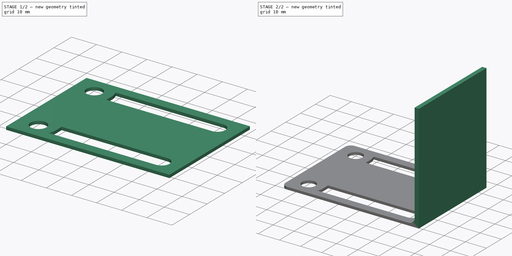
[diagram: build sequence overview — one tinted view per stage of 2, left to right]
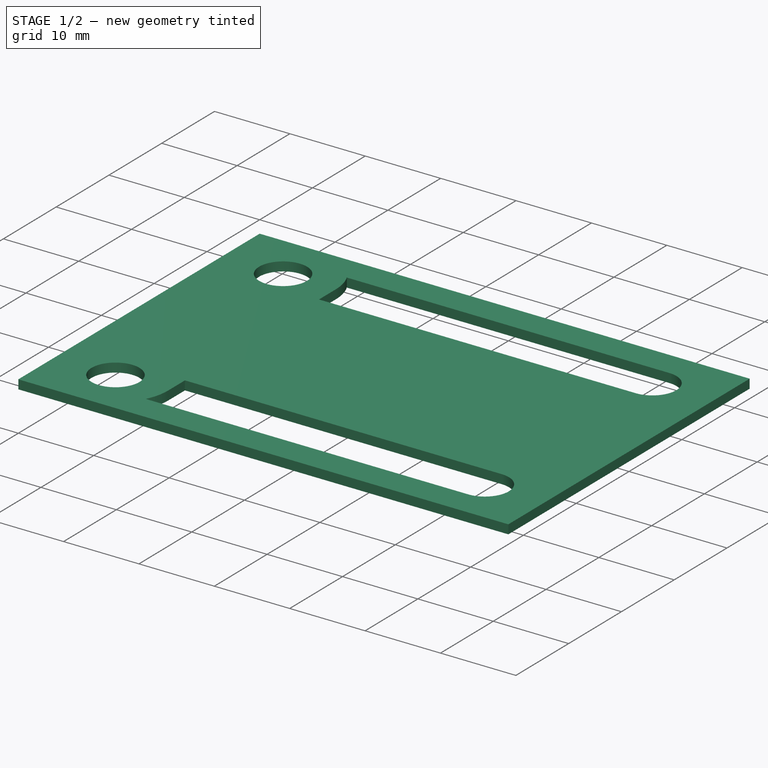
[diagram: stage 1 of 2 — iso view after this stage's code; geometry added in this stage tinted green]
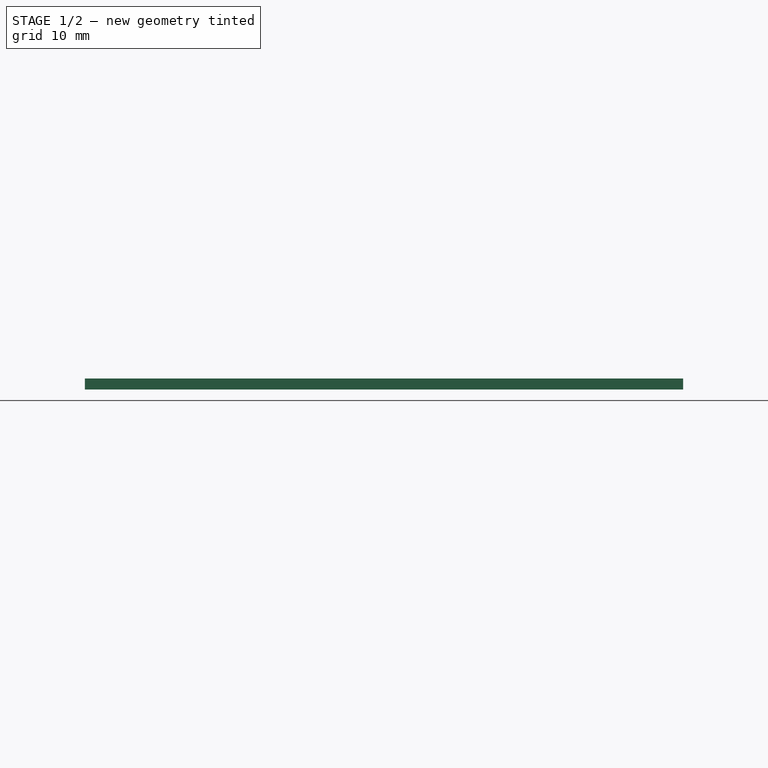
[diagram: stage 1 of 2 — front view after this stage's code; geometry added in this stage tinted green]
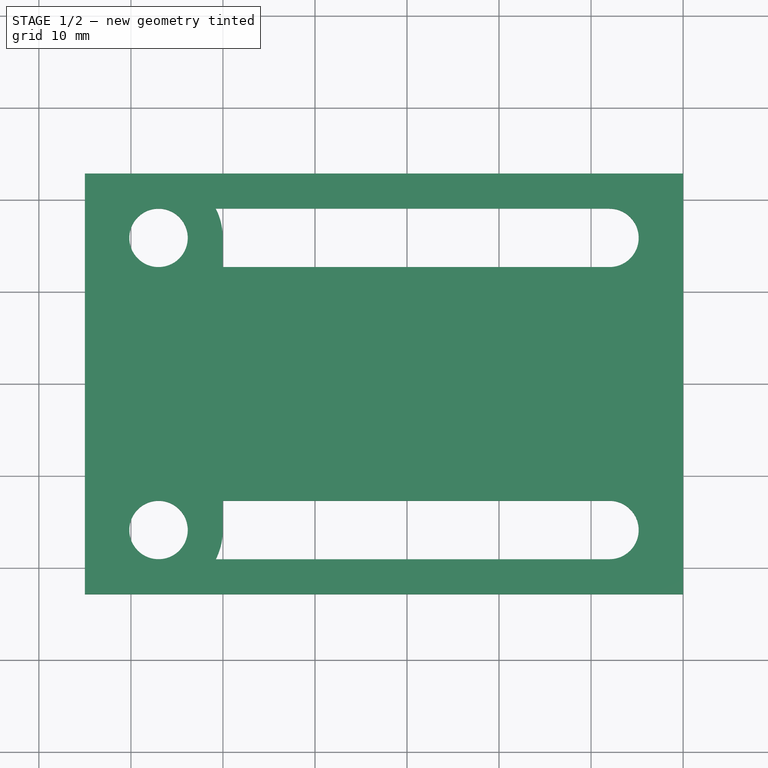
[diagram: stage 1 of 2 — top view after this stage's code; geometry added in this stage tinted green]
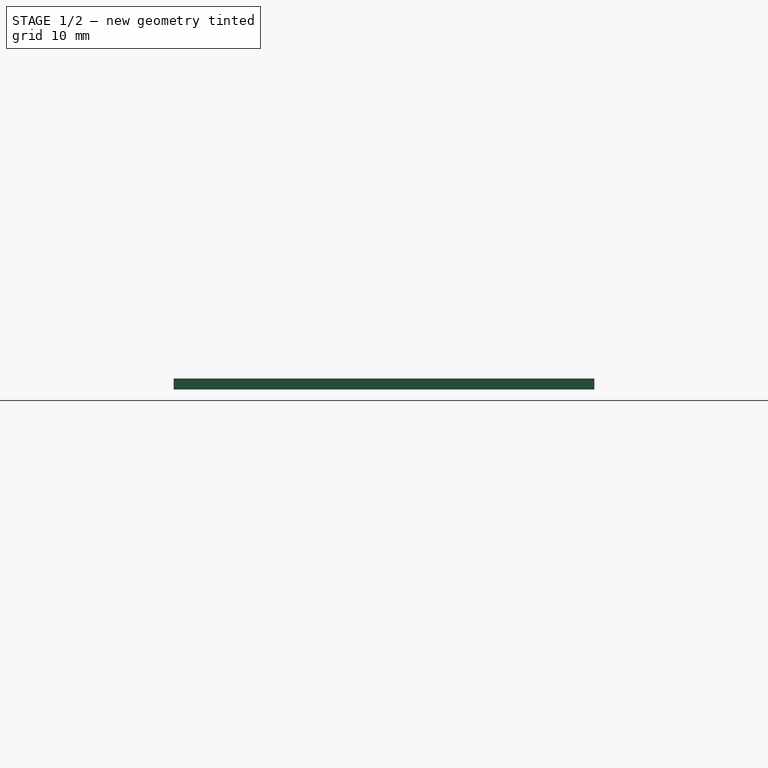
[diagram: stage 1 of 2 — right view after this stage's code; geometry added in this stage tinted green]
FCSTD DOCUMENT  (FreeCAD 0.18.3R)
Label: KallaxLock
License: All rights reserved
LicenseURL: http://en.wikipedia.org/wiki/All_rights_reserved
objects: Sketcher::SketchObject×3, PartDesign::Pad×3, PartDesign::Body×2, PartDesign::Fillet×1, PartDesign::ShapeBinder×1, App::Part×1
note: 13 computed .brp shape members not serialized (recipe doc carries the construction recipe); baked Part::Feature solids carry a one-line shape summary decoded from their .brp

FEATURE [Sketcher::SketchObject] Sketch
  MapMode = 5
  Support = -> [XY_Plane001]
  sketch-geometry (14):
    g0: LineSegment StartX=-65 StartY=22.86 StartZ=0 EndX=0 EndY=22.86 EndZ=0
    g1: LineSegment StartX=0 StartY=22.86 StartZ=0 EndX=0 EndY=-22.86 EndZ=0
    g2: LineSegment StartX=0 StartY=-22.86 StartZ=0 EndX=-65 EndY=-22.86 EndZ=0
    g3: LineSegment StartX=-65 StartY=-22.86 StartZ=0 EndX=-65 EndY=22.86 EndZ=0
    g4: ArcOfCircle CenterX=-57 CenterY=15.875 CenterZ=0 NormalX=0 NormalY=0 NormalZ=1 AngleXU=0 Radius=3.175 StartAngle=1.5708 EndAngle=4.71239
    g5: ArcOfCircle CenterX=-8 CenterY=15.875 CenterZ=0 NormalX=0 NormalY=0 NormalZ=1 AngleXU=0 Radius=3.175 StartAngle=4.71239 EndAngle=7.85398
    g6: LineSegment StartX=-57 StartY=12.7 StartZ=0 EndX=-8 EndY=12.7 EndZ=0
    g7: LineSegment StartX=-57 StartY=19.05 StartZ=0 EndX=-8 EndY=19.05 EndZ=0
    g8: ArcOfCircle CenterX=-57 CenterY=-15.875 CenterZ=0 NormalX=0 NormalY=0 NormalZ=1 AngleXU=0 Radius=3.175 StartAngle=1.5708 EndAngle=4.71239
    g9: ArcOfCircle CenterX=-8 CenterY=-15.875 CenterZ=0 NormalX=0 NormalY=0 NormalZ=1 AngleXU=0 Radius=3.175 StartAngle=4.71239 EndAngle=7.85398
    g10: LineSegment StartX=-57 StartY=-19.05 StartZ=0 EndX=-8 EndY=-19.05 EndZ=0
    g11: LineSegment StartX=-57 StartY=-12.7 StartZ=0 EndX=-8 EndY=-12.7 EndZ=0
    g12: LineSegment [constr] StartX=-57 StartY=15.875 StartZ=0 EndX=-65 EndY=15.875 EndZ=0
    g13: LineSegment [constr] StartX=-8 StartY=15.875 StartZ=0 EndX=0 EndY=15.875 EndZ=0
  constraints (36):
    c: Coincident(g0,g1)
    c: Coincident(g1,g2)
    c: Coincident(g2,g3)
    c: Coincident(g3,g0)
    c: Horizontal(g0)
    c: Horizontal(g2)
    c: Vertical(g1)
    c: DistanceY(g3,g3) = 45.72
    c: Symmetric(g0,g1,g-1)
    c: Vertical(g3)
    c: Tangent(g4,g7) = 1.5708
    c: Tangent(g4,g6) = -1.5708
    c: Tangent(g6,g5) = -1.5708
    c: Tangent(g7,g5) = 1.5708
    c: Horizontal(g6)
    c: Equal(g4,g5)
    c: Tangent(g8,g11) = 1.5708
    c: Tangent(g8,g10) = -1.5708
    c: Tangent(g10,g9) = -1.5708
    c: Tangent(g11,g9) = 1.5708
    c: Horizontal(g10)
    c: Equal(g8,g9)
    c: Equal(g6,g11)
    c: Equal(g9,g5)
    c: Symmetric(g9,g5,g-1)
    c: Radius(g4) = 3.175
    c: DistanceY(g8,g4) = 31.75
    c: Coincident(g12,g4)
    c: PointOnObject(g12,g3)
    c: Horizontal(g12)
    c: DistanceX(g12,g12) = 8
    c: Coincident(g13,g5)
    c: Horizontal(g13)
    c: PointOnObject(g13,g1)
    c: Equal(g13,g12)
    c: DistanceX(g0,g0) = 65
FEATURE [PartDesign::Pad] Pad
  Length = 1.2
  Length2 = 100
  Profile = -> Sketch
  Type = 0
FEATURE [PartDesign::Body] Body
  Group = -> [Sketch,Pad,Sketch001,Pad001,Fillet]
  Origin = -> Origin001
  Tip = -> Fillet
FEATURE [PartDesign::ShapeBinder] ShapeBinder
  Support = -> [Sketch]
  TraceSupport = false
FEATURE [Sketcher::SketchObject] Sketch002
  ExternalGeometry = -> [ShapeBinder]
  MapMode = 5
  Support = -> [XY_Plane002]
  sketch-geometry (6):
    g0: ArcOfCircle CenterX=-57 CenterY=15.875 CenterZ=0 NormalX=0 NormalY=0 NormalZ=1 AngleXU=0 Radius=6.985 StartAngle=-3.6e-15 EndAngle=3.14159
    g1: ArcOfCircle CenterX=-57 CenterY=-15.875 CenterZ=0 NormalX=0 NormalY=0 NormalZ=1 AngleXU=0 Radius=6.985 StartAngle=3.14159 EndAngle=6.28319
    g2: LineSegment StartX=-63.985 StartY=15.875 StartZ=0 EndX=-63.985 EndY=-15.875 EndZ=0
    g3: LineSegment StartX=-50.015 StartY=15.875 StartZ=0 EndX=-50.015 EndY=-15.875 EndZ=0
    g4: Circle CenterX=-57 CenterY=15.875 CenterZ=0 NormalX=0 NormalY=0 NormalZ=1 AngleXU=0 Radius=3.175
    g5: Circle CenterX=-57 CenterY=-15.875 CenterZ=0 NormalX=0 NormalY=0 NormalZ=1 AngleXU=0 Radius=3.175
  constraints (12):
    c: Tangent(g0,g3) = 1.5708
    c: Tangent(g0,g2) = -1.5708
    c: Tangent(g2,g1) = -1.5708
    c: Tangent(g3,g1) = 1.5708
    c: Vertical(g2)
    c: Coincident(g0,g-3)
    c: Coincident(g1,g-4)
    c: Tangent(g0,g-6)
    c: Coincident(g4,g0)
    c: Coincident(g5,g1)
    c: Equal(g4,g5)
    c: Equal(g4,g-3)
FEATURE [PartDesign::Pad] Pad002
  Length = 1.2
  Length2 = 100
  Profile = -> Sketch002
  Type = 0
FEATURE [PartDesign::Body] Body001
  Group = -> [ShapeBinder,Sketch002,Pad002]
  Origin = -> Origin002
  Placement = pos=(0,0,1.2) rot=(0,0,1;0rad)
  Tip = -> Pad002
  expr: Placement.Base.z = Sketch.Placement.Base.z + Pad.Length
FEATURE [App::Part] Part
  Group = -> [Body,Body001]
  Origin = -> Origin
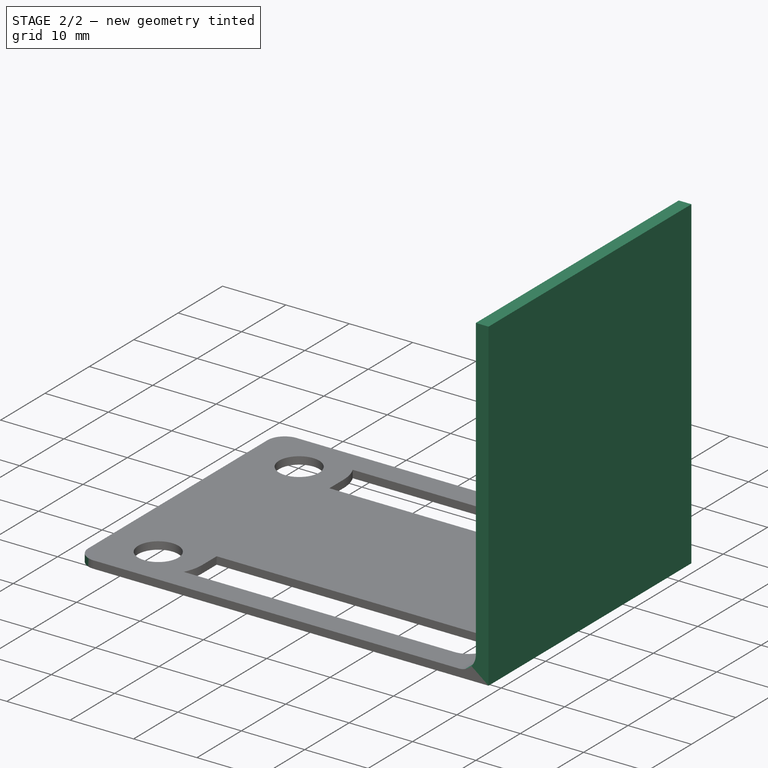
[diagram: stage 2 of 2 — iso view after this stage's code; geometry added in this stage tinted green]
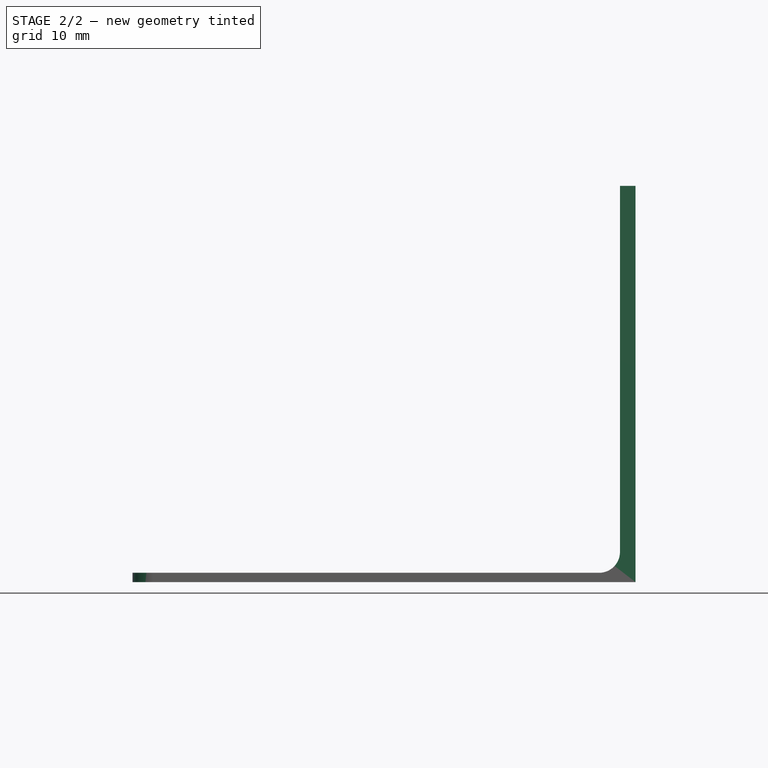
[diagram: stage 2 of 2 — front view after this stage's code; geometry added in this stage tinted green]
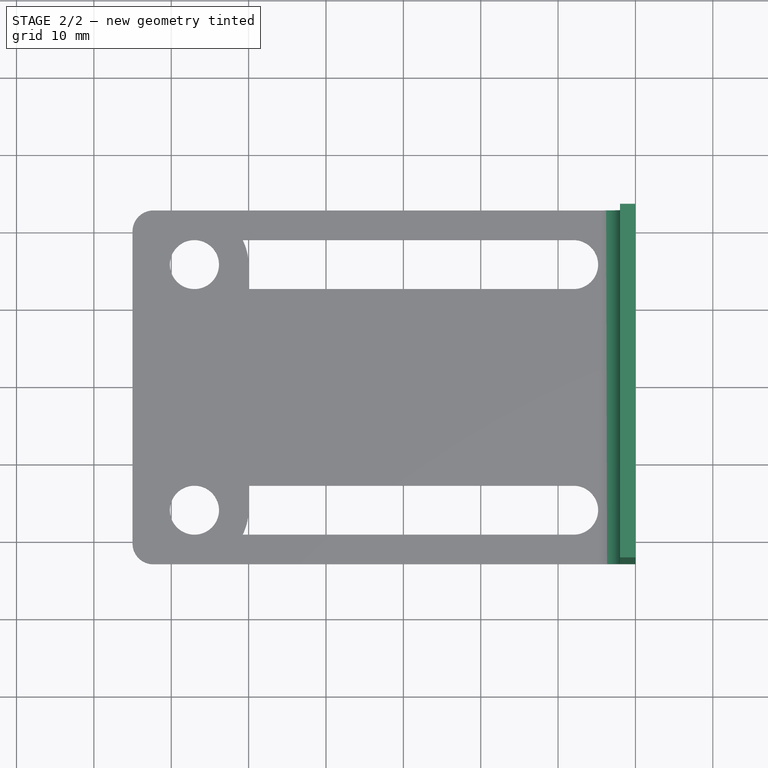
[diagram: stage 2 of 2 — top view after this stage's code; geometry added in this stage tinted green]
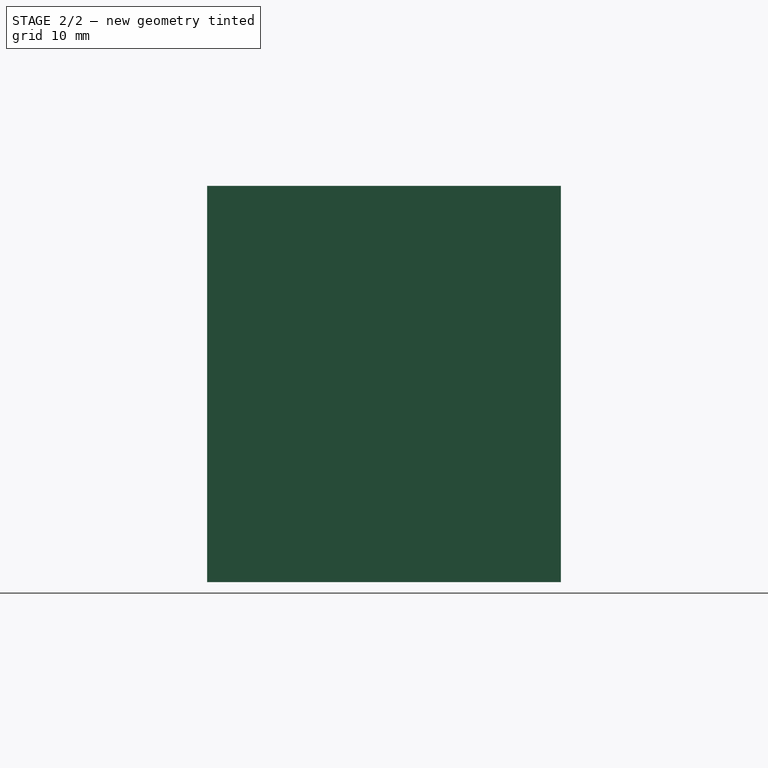
[diagram: stage 2 of 2 — right view after this stage's code; geometry added in this stage tinted green]
FEATURE [Sketcher::SketchObject] Sketch001
  AttachmentOffset = pos=(0,0,1.2) rot=(0,0,1;0rad)
  ExternalGeometry = -> [Sketch]
  MapMode = 5
  Placement = pos=(0,0,1.2) rot=(0,0,1;0rad)
  Support = -> [XY_Plane001]
  expr: AttachmentOffset.Base.z = Sketch.Placement.Base.z + Pad.Length
  sketch-geometry (4):
    g0: LineSegment StartX=0 StartY=22.86 StartZ=0 EndX=-2 EndY=22.86 EndZ=0
    g1: LineSegment StartX=-2 StartY=22.86 StartZ=0 EndX=-2 EndY=-22.86 EndZ=0
    g2: LineSegment StartX=-2 StartY=-22.86 StartZ=0 EndX=0 EndY=-22.86 EndZ=0
    g3: LineSegment StartX=0 StartY=-22.86 StartZ=0 EndX=0 EndY=22.86 EndZ=0
  constraints (10):
    c: Coincident(g0,g1)
    c: Coincident(g1,g2)
    c: Coincident(g2,g3)
    c: Coincident(g3,g0)
    c: Horizontal(g0)
    c: Horizontal(g2)
    c: Vertical(g1)
    c: Coincident(g0,g-3)
    c: Coincident(g2,g-3)
    c: DistanceX(g0,g0) = 2
FEATURE [PartDesign::Pad] Pad001
  BaseFeature = -> Pad
  Length = 50
  Length2 = 100
  Profile = -> Sketch001
  Refine = true
  Type = 0
FEATURE [PartDesign::Fillet] Fillet
  Base = -> Pad001 [Edge17,Edge2,Edge1]
  BaseFeature = -> Pad001
  Radius = 2.7
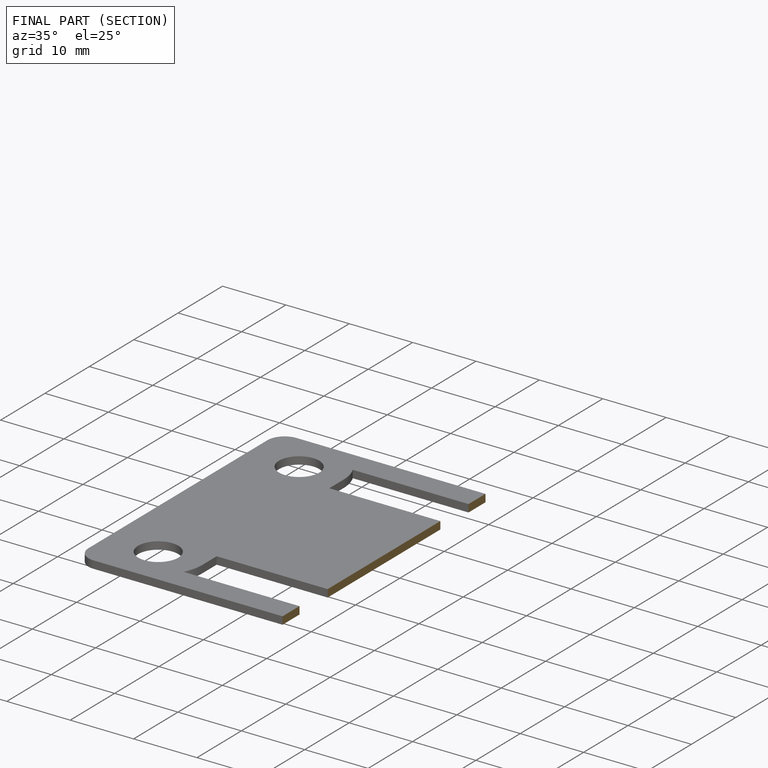
[diagram: finished part — half-section view (interior)]
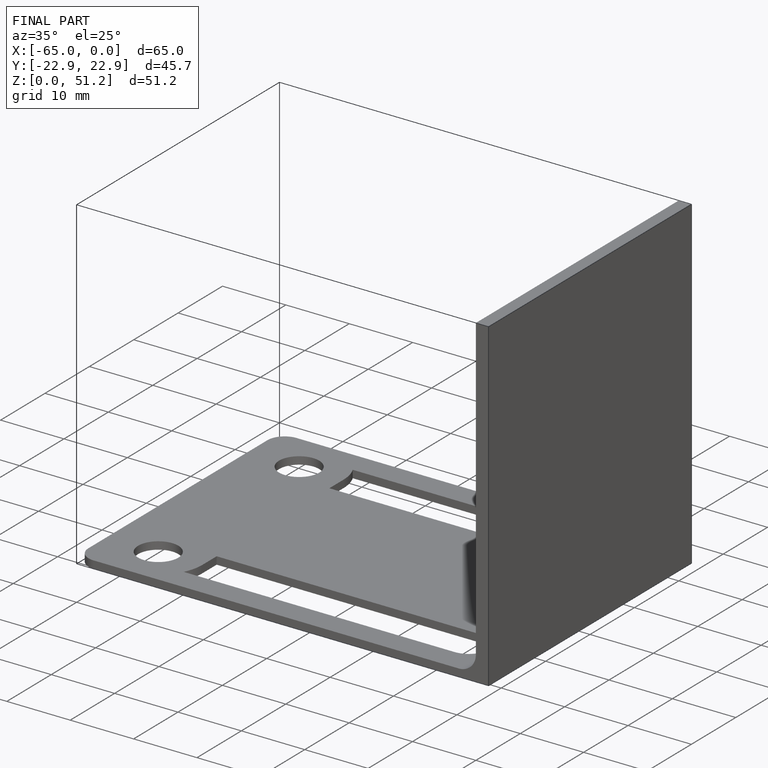
[diagram: finished part — iso view with bounding-box wireframe]
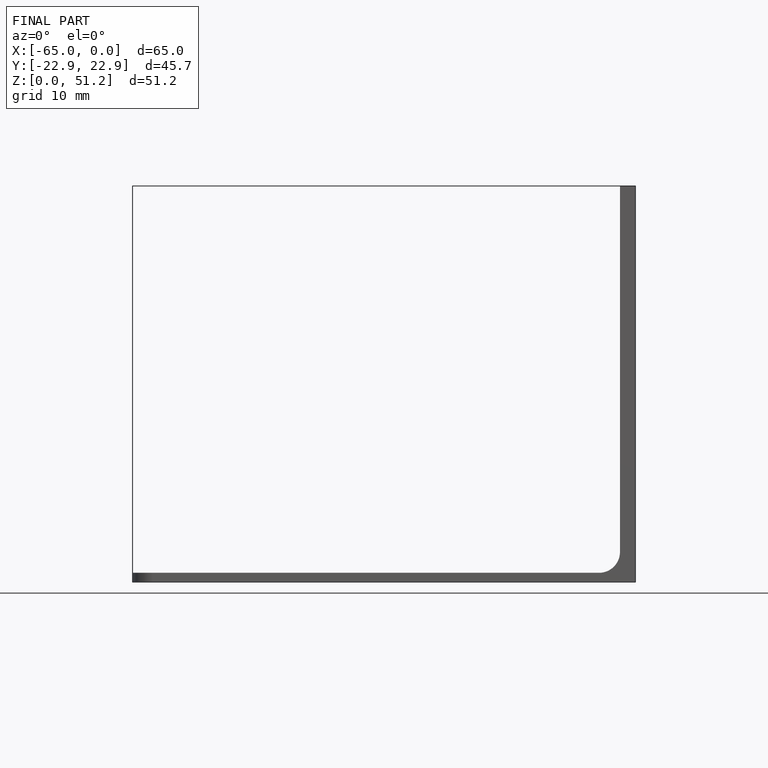
[diagram: finished part — front view with bounding-box wireframe]
